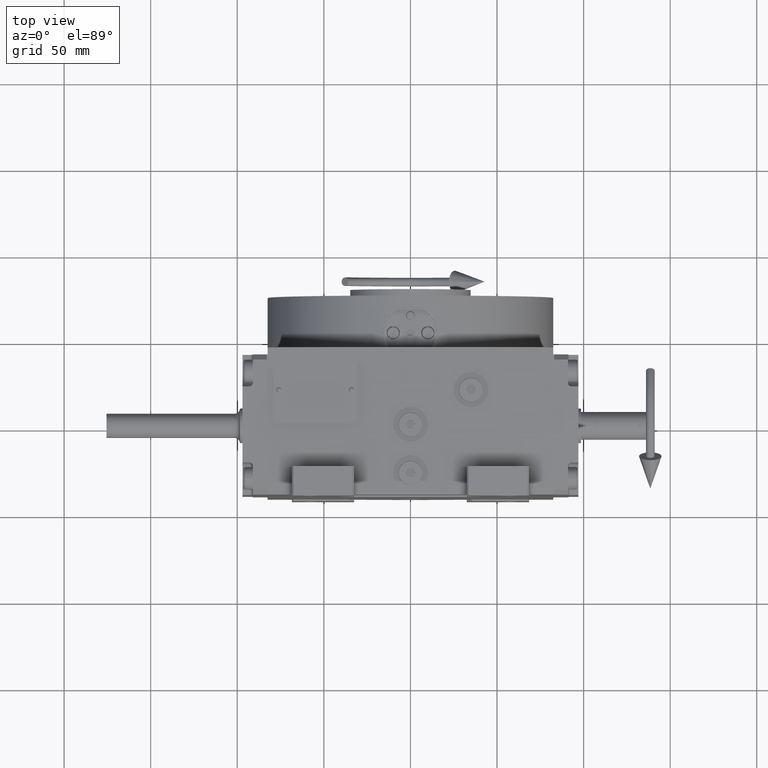
[diagram: clean part render]
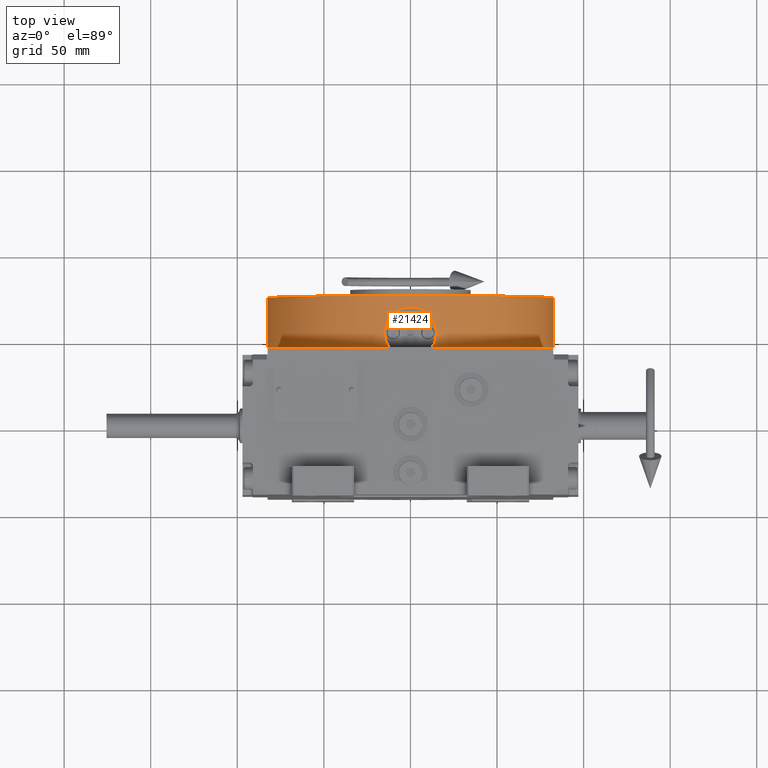
[diagram: same view with one face highlighted and labeled with its STEP entity id]
A machine part, top view. The second image highlights one B-rep face of the part: STEP entity #21424.
In plain terms, the highlighted cylindrical surface (partial cylindrical patch) has radius 82.5 mm, axis along (0, 1, 0).
Its self-contained STEP definition (entity closure, byte-faithful):
#391 = CIRCLE ( 'NONE', #24077, 82.50000000000001421 ) ;
#1786 = CARTESIAN_POINT ( 'NONE',  ( -3.867827837291152537, -82.41486004604385585, 23.52566220404655439 ) ) ;
#2101 = ORIENTED_EDGE ( 'NONE', *, *, #9832, .T. ) ;
#2421 = CARTESIAN_POINT ( 'NONE',  ( 14.05486030038500900, -81.29419948058227874, 14.26331805387535923 ) ) ;
#2730 = CARTESIAN_POINT ( 'NONE',  ( 1.946678680942775408, -82.47845885749219974, 23.88111003742973182 ) ) ;
#3046 = CARTESIAN_POINT ( 'NONE',  ( -14.97611104150528405, -81.12933149880575456, 9.976411005623861072 ) ) ;
#3485 = ORIENTED_EDGE ( 'NONE', *, *, #60512, .T. ) ;
#4010 = CARTESIAN_POINT ( 'NONE',  ( 14.99998170468830949, -81.12496520513606413, 8.999999993001440046 ) ) ;
#4275 = EDGE_LOOP ( 'NONE', ( #47640, #2101, #34885, #60422, #3485, #4700, #13026, #35563 ) ) ;
#4310 = CARTESIAN_POINT ( 'NONE',  ( 82.49999999999998579, -1.010300241903009221E-14, 30.49999999999999289 ) ) ;
#4700 = ORIENTED_EDGE ( 'NONE', *, *, #54104, .T. ) ;
#6916 = CARTESIAN_POINT ( 'NONE',  ( -15.00000155215765929, -81.12491227879678490, 8.999999541712211837 ) ) ;
#7053 = VERTEX_POINT ( 'NONE', #59082 ) ;
#7183 = CARTESIAN_POINT ( 'NONE',  ( -14.74242422404743813, -81.17373584456728963, 5.798881419567308626 ) ) ;
#7220 = CARTESIAN_POINT ( 'NONE',  ( 4.812155808953960445, -82.36454601314801494, 23.24101326873693196 ) ) ;
#7861 = CARTESIAN_POINT ( 'NONE',  ( -14.99996597817484556, -81.12490998857889224, 9.487419267298863090 ) ) ;
#8490 = CARTESIAN_POINT ( 'NONE',  ( 14.97604040435058970, -81.12934452212022052, 9.976003562772230993 ) ) ;
#9832 = EDGE_CURVE ( 'NONE', #48890, #46167, #23607, .T. ) ;
#10895 = CARTESIAN_POINT ( 'NONE',  ( 0.000000000000000000, 0.000000000000000000, 0.000000000000000000 ) ) ;
#11416 = CARTESIAN_POINT ( 'NONE',  ( -0.4879484670812267999, -82.50000264633506220, 24.00001391814626928 ) ) ;
#11756 = CARTESIAN_POINT ( 'NONE',  ( 11.93547449364186264, -81.63394118524294640, 18.13850242473971264 ) ) ;
#11829 = VECTOR ( 'NONE', #43284, 1000.000000000000000 ) ;
#12338 = DIRECTION ( 'NONE',  ( 1.000000000000000000, 0.000000000000000000, 0.000000000000000000 ) ) ;
#12703 = CARTESIAN_POINT ( 'NONE',  ( -14.05465484448405888, -81.29423505555718066, 14.26388389374271348 ) ) ;
#12808 = CARTESIAN_POINT ( 'NONE',  ( 12.24331260194398219, -81.58683580788726886, 0.3244168025936693400 ) ) ;
#13026 = ORIENTED_EDGE ( 'NONE', *, *, #61955, .T. ) ;
#13196 = EDGE_CURVE ( 'NONE', #20251, #62593, #58999, .T. ) ;
#14439 = CARTESIAN_POINT ( 'NONE',  ( -82.50000000000001421, 2.020633851199993078E-14, 30.49999999999999289 ) ) ;
#14802 = AXIS2_PLACEMENT_3D ( 'NONE', #30042, #44564, #29722 ) ;
#15142 = CARTESIAN_POINT ( 'NONE',  ( -82.50000000000001421, 1.010322486831990379E-14, 0.000000000000000000 ) ) ;
#15624 = AXIS2_PLACEMENT_3D ( 'NONE', #35550, #40724, #60340 ) ;
#15726 = CARTESIAN_POINT ( 'NONE',  ( -15.00012495507364818, -81.12488059373359306, 7.400251699618396017 ) ) ;
#16576 = CARTESIAN_POINT ( 'NONE',  ( -10.25790594505797237, -81.86054721232861198, 19.95533894909772954 ) ) ;
#16740 = AXIS2_PLACEMENT_3D ( 'NONE', #10895, #29325, #12338 ) ;
#17211 = CARTESIAN_POINT ( 'NONE',  ( 6.624688226116246526, -82.23860887313442447, 22.49344792348201594 ) ) ;
#19374 = CARTESIAN_POINT ( 'NONE',  ( 14.99989816169959411, -81.12492252780923252, 9.486904479132544310 ) ) ;
#20023 = DIRECTION ( 'NONE',  ( 0.000000000000000000, 0.000000000000000000, 1.000000000000000000 ) ) ;
#20050 = CARTESIAN_POINT ( 'NONE',  ( 14.88111878486925832, -81.14680913315217481, 10.94694900896201339 ) ) ;
#20251 = VERTEX_POINT ( 'NONE', #37841 ) ;
#21424 = ADVANCED_FACE ( 'NONE', ( #59276 ), #24473, .T. ) ;
#21442 = CARTESIAN_POINT ( 'NONE',  ( 3.868685143425967254, -82.41481977167674700, 23.52543458421588696 ) ) ;
#22090 = CARTESIAN_POINT ( 'NONE',  ( 14.21962999529760197, -81.26544602374748649, 13.80011905861209520 ) ) ;
#22397 = CARTESIAN_POINT ( 'NONE',  ( -0.9749065849585353272, -82.49566829684266622, 23.97626193698611630 ) ) ;
#22721 = CARTESIAN_POINT ( 'NONE',  ( -7.908806210085963073, -82.12107474416406205, 21.75512952174813819 ) ) ;
#23290 = VERTEX_POINT ( 'NONE', #38968 ) ;
#23590 = VERTEX_POINT ( 'NONE', #56176 ) ;
#23607 = LINE ( 'NONE', #42661, #11829 ) ;
#23691 = CARTESIAN_POINT ( 'NONE',  ( 12.00000000000000000, -81.62260716247999426, 0.000000000000000000 ) ) ;
#24077 = AXIS2_PLACEMENT_3D ( 'NONE', #53637, #53025, #28217 ) ;
#24473 = CYLINDRICAL_SURFACE ( 'NONE', #16740, 82.50000000000000000 ) ;
#26309 = CARTESIAN_POINT ( 'NONE',  ( -14.88113668230524134, -81.14680586697889453, 10.94705578319436157 ) ) ;
#26606 = CARTESIAN_POINT ( 'NONE',  ( -14.50208352788519228, -81.21551683938376698, 12.86383315645771575 ) ) ;
#26779 = EDGE_CURVE ( 'NONE', #23290, #48890, #391, .T. ) ;
#26917 = CARTESIAN_POINT ( 'NONE',  ( -13.49373063831430919, -81.38988350970689112, 15.62419185199609650 ) ) ;
#27089 = VECTOR ( 'NONE', #20023, 1000.000000000000000 ) ;
#27255 = CARTESIAN_POINT ( 'NONE',  ( -1.945796341396865525, -82.47847966099942596, 23.88122612831212166 ) ) ;
#27323 = EDGE_CURVE ( 'NONE', #62593, #46167, #35439, .T. ) ;
#27556 = CARTESIAN_POINT ( 'NONE',  ( -11.30480490646017699, -81.72482293125531783, 18.90840080558208314 ) ) ;
#28217 = DIRECTION ( 'NONE',  ( 0.1454545454545079775, -0.9893649353027538229, 0.000000000000000000 ) ) ;
#29325 = DIRECTION ( 'NONE',  ( 0.000000000000000000, 0.000000000000000000, 1.000000000000000000 ) ) ;
#29722 = DIRECTION ( 'NONE',  ( -1.000000000000000000, 0.000000000000000000, 0.000000000000000000 ) ) ;
#30042 = CARTESIAN_POINT ( 'NONE',  ( 0.000000000000000000, 0.000000000000000000, 30.49999999999999289 ) ) ;
#31108 = CARTESIAN_POINT ( 'NONE',  ( 9.891167989166826047, -81.90581744979145640, 20.28740639923825739 ) ) ;
#31450 = CARTESIAN_POINT ( 'NONE',  ( 13.02891348785843917, -81.46657792094852368, 16.49810643378964770 ) ) ;
#31677 = CARTESIAN_POINT ( 'NONE',  ( 14.99998170468830949, -81.12496520513606413, 8.999999993001440046 ) ) ;
#32295 = VERTEX_POINT ( 'NONE', #31677 ) ;
#32397 = CARTESIAN_POINT ( 'NONE',  ( -11.93490206567074807, -81.63402577779145020, 18.13927526272372148 ) ) ;
#34001 = CARTESIAN_POINT ( 'NONE',  ( 14.74248490922440880, -81.17372402366743245, 5.799389260054983453 ) ) ;
#34480 = CARTESIAN_POINT ( 'NONE',  ( -15.00000155215765929, -81.12491227879678490, 8.999999541712211837 ) ) ;
#34885 = ORIENTED_EDGE ( 'NONE', *, *, #27323, .F. ) ;
#35426 = CARTESIAN_POINT ( 'NONE',  ( -12.90388583830122649, -81.48489037961125803, 1.341496897383961162 ) ) ;
#35439 = CIRCLE ( 'NONE', #14802, 82.50000000000000000 ) ;
#35550 = CARTESIAN_POINT ( 'NONE',  ( 0.000000000000000000, 0.000000000000000000, 0.000000000000000000 ) ) ;
#35563 = ORIENTED_EDGE ( 'NONE', *, *, #40639, .T. ) ;
#36251 = CARTESIAN_POINT ( 'NONE',  ( 8.730210659104772120, -82.03781768206627589, 21.20768323055676063 ) ) ;
#36265 = CARTESIAN_POINT ( 'NONE',  ( 82.49999999999998579, -1.010300241903009221E-14, 0.000000000000000000 ) ) ;
#36583 = CARTESIAN_POINT ( 'NONE',  ( -14.21939720915072236, -81.26548680187907792, 13.80076203430779636 ) ) ;
#36889 = CARTESIAN_POINT ( 'NONE',  ( 14.62034687227734686, -81.19424092436567264, 12.38900085948214169 ) ) ;
#37203 = CARTESIAN_POINT ( 'NONE',  ( -14.62018483521941903, -81.19427011681041506, 12.38958309517191125 ) ) ;
#37306 = CARTESIAN_POINT ( 'NONE',  ( 13.98285332921872559, -81.30680104435214162, 3.511842341530857947 ) ) ;
#37540 = CARTESIAN_POINT ( 'NONE',  ( 7.499193382787055384, -82.16259812932356965, 22.02817527205979431 ) ) ;
#37841 = CARTESIAN_POINT ( 'NONE',  ( -82.50000000000001421, 2.020633851199993078E-14, 0.000000000000000000 ) ) ;
#38966 = CARTESIAN_POINT ( 'NONE',  ( -13.10624451707161064, -81.45251509904302623, 1.693301029072924457 ) ) ;
#38968 = CARTESIAN_POINT ( 'NONE',  ( 12.00000000000000000, -81.62260716247999426, 0.000000000000000000 ) ) ;
#39639 = CARTESIAN_POINT ( 'NONE',  ( -12.24319486889437414, -81.58685311677562879, 0.3242598251943211718 ) ) ;
#40639 = EDGE_CURVE ( 'NONE', #32295, #23290, #56446, .T. ) ;
#40724 = DIRECTION ( 'NONE',  ( 0.000000000000000000, 0.000000000000000000, 1.000000000000000000 ) ) ;
#41121 = CARTESIAN_POINT ( 'NONE',  ( 10.25845936648661372, -81.86047786769078982, 19.95481955293025678 ) ) ;
#41435 = CARTESIAN_POINT ( 'NONE',  ( -8.729544479475640273, -82.03788872213942795, 21.20816065199864298 ) ) ;
#41758 = CARTESIAN_POINT ( 'NONE',  ( 14.50226475351318811, -81.21548443283947449, 12.86326937730964204 ) ) ;
#42065 = CARTESIAN_POINT ( 'NONE',  ( 2.431423179542332669, -82.46555639784538982, 23.80969995749037338 ) ) ;
#42385 = CARTESIAN_POINT ( 'NONE',  ( -6.617142359139878138, -82.23535187233964905, 22.47052742801817615 ) ) ;
#42661 = CARTESIAN_POINT ( 'NONE',  ( 82.49999999999998579, -1.010322486831990379E-14, 0.000000000000000000 ) ) ;
#42712 = CARTESIAN_POINT ( 'NONE',  ( 14.81014688631922027, -81.15983520902004500, 11.42877646947460057 ) ) ;
#43284 = DIRECTION ( 'NONE',  ( 0.000000000000000000, 0.000000000000000000, 1.000000000000000000 ) ) ;
#43362 = CARTESIAN_POINT ( 'NONE',  ( 15.00017790217110836, -81.12487080390822314, 7.399368257337098242 ) ) ;
#43710 = CARTESIAN_POINT ( 'NONE',  ( 12.90417259304091502, -81.48484508862800624, 1.341936808822923100 ) ) ;
#43984 = B_SPLINE_CURVE_WITH_KNOTS ( 'NONE', 3,
 ( #6916, #7861, #3046, #26309, #60746, #37203, #26606, #36583, #12703, #26917, #61387, #32397, #27556, #16576, #46271, #51720, #41435, #22721, #45963, #42385, #61074, #56240, #1786, #62022, #27255, #22397, #11416, #46905, #51406, #2730, #42065, #21442, #7220, #17211, #37540, #36251, #46576, #31108, #41121, #55927, #11756, #31450, #51092, #2421, #22090, #41758, #36889, #42712, #20050, #8490, #19374, #59349 ),
 .UNSPECIFIED., .F., .F.,
 ( 4, 2, 2, 2, 2, 2, 2, 2, 2, 2, 2, 2, 2, 2, 2, 2, 2, 2, 2, 2, 2, 2, 2, 2, 2, 4 ),
 ( 0.1454211916502409219, 0.1675750447099730867, 0.1897288977697052237, 0.2118827508294373885, 0.2340366038891695255, 0.2783443100086339106, 0.3226520161280983512, 0.3448058691878305160, 0.3669597222475627918, 0.3891135753072950121, 0.4112674283670272324, 0.4555751344864917840, 0.4777289875462240598, 0.4998828406059562801, 0.5220366936656886114, 0.5441905467254208872, 0.5884982528448854389, 0.6328059589643499905, 0.6549598120240823773, 0.6771136650838146531, 0.7214213712032793158, 0.7657290773227439784, 0.7878829303824763652, 0.8100367834422087521, 0.8321906365019411389, 0.8543444895616735257 ),
 .UNSPECIFIED. ) ;
#44564 = DIRECTION ( 'NONE',  ( 0.000000000000000000, 0.000000000000000000, 1.000000000000000000 ) ) ;
#45963 = CARTESIAN_POINT ( 'NONE',  ( -7.484978948461018078, -82.16090774029784427, 22.00829641613369247 ) ) ;
#46167 = VERTEX_POINT ( 'NONE', #4310 ) ;
#46271 = CARTESIAN_POINT ( 'NONE',  ( -9.890504462964388566, -81.90589755126528360, 20.28798289320899073 ) ) ;
#46576 = CARTESIAN_POINT ( 'NONE',  ( 9.126528520268772482, -81.99454014431202609, 20.91422892542598788 ) ) ;
#46905 = CARTESIAN_POINT ( 'NONE',  ( 0.4888429166140731419, -82.49999735124053757, 23.99998603411285103 ) ) ;
#47640 = ORIENTED_EDGE ( 'NONE', *, *, #26779, .T. ) ;
#48188 = CARTESIAN_POINT ( 'NONE',  ( 13.66723119669916819, -81.36092580131199270, 2.766280334785800044 ) ) ;
#48890 = VERTEX_POINT ( 'NONE', #36265 ) ;
#48986 = CARTESIAN_POINT ( 'NONE',  ( -13.66693360478552854, -81.36097572575444303, 2.765632748514421202 ) ) ;
#50237 = CARTESIAN_POINT ( 'NONE',  ( -12.47259339607201056, -81.55202047700251455, 0.6574111697099772611 ) ) ;
#51092 = CARTESIAN_POINT ( 'NONE',  ( 13.49400507702379315, -81.38983779311415390, 15.62360459987141326 ) ) ;
#51406 = CARTESIAN_POINT ( 'NONE',  ( 0.9757833380981876248, -82.49565794798510865, 23.97620529776547116 ) ) ;
#51720 = CARTESIAN_POINT ( 'NONE',  ( -9.125874858034199733, -81.99461287356496086, 20.91473132629081633 ) ) ;
#53025 = DIRECTION ( 'NONE',  ( 0.000000000000000000, 0.000000000000000000, 1.000000000000000000 ) ) ;
#53637 = CARTESIAN_POINT ( 'NONE',  ( 0.000000000000000000, 0.000000000000000000, 0.000000000000000000 ) ) ;
#53793 = CARTESIAN_POINT ( 'NONE',  ( -13.98260586172614417, -81.30684380208695927, 3.511029366357954373 ) ) ;
#53990 = CARTESIAN_POINT ( 'NONE',  ( 13.10652166113867167, -81.45247052056652137, 1.693759511858070832 ) ) ;
#54104 = EDGE_CURVE ( 'NONE', #7053, #23590, #60007, .T. ) ;
#54753 = CIRCLE ( 'NONE', #15624, 82.50000000000000000 ) ;
#55927 = CARTESIAN_POINT ( 'NONE',  ( 11.30536172407987650, -81.72474593102090523, 18.90776664378990901 ) ) ;
#56176 = CARTESIAN_POINT ( 'NONE',  ( -15.00000155215765929, -81.12491227879678490, 8.999999541712211837 ) ) ;
#56240 = CARTESIAN_POINT ( 'NONE',  ( -4.811342207377684588, -82.36459328412949787, 23.24128728243599440 ) ) ;
#56446 = B_SPLINE_CURVE_WITH_KNOTS ( 'NONE', 3,
 ( #4010, #43362, #34001, #37306, #48188, #53990, #43710, #61796, #12808, #23691 ),
 .UNSPECIFIED., .F., .F.,
 ( 4, 2, 2, 2, 4 ),
 ( 0.8543444895616735257, 0.9271722447808367074, 0.9635861223904182982, 0.9817930611952091491, 1.000000000000000000 ),
 .UNSPECIFIED. ) ;
#58955 = CARTESIAN_POINT ( 'NONE',  ( -12.00000000000000000, -81.62260716247999426, 0.000000000000000000 ) ) ;
#58999 = LINE ( 'NONE', #15142, #27089 ) ;
#59082 = CARTESIAN_POINT ( 'NONE',  ( -12.00000000000000000, -81.62260716247999426, 0.000000000000000000 ) ) ;
#59276 = FACE_OUTER_BOUND ( 'NONE', #4275, .T. ) ;
#59349 = CARTESIAN_POINT ( 'NONE',  ( 14.99998170468830949, -81.12496520513606413, 8.999999993001440046 ) ) ;
#60007 = B_SPLINE_CURVE_WITH_KNOTS ( 'NONE', 3,
 ( #58955, #39639, #50237, #35426, #38966, #48986, #53793, #7183, #15726, #34480 ),
 .UNSPECIFIED., .F., .F.,
 ( 4, 2, 2, 2, 4 ),
 ( 0.000000000000000000, 0.01817764895628013258, 0.03635529791256026516, 0.07271059582512048869, 0.1454211916502409219 ),
 .UNSPECIFIED. ) ;
#60340 = DIRECTION ( 'NONE',  ( -1.000000000000000000, 0.000000000000000000, 0.000000000000000000 ) ) ;
#60422 = ORIENTED_EDGE ( 'NONE', *, *, #13196, .F. ) ;
#60512 = EDGE_CURVE ( 'NONE', #20251, #7053, #54753, .T. ) ;
#60746 = CARTESIAN_POINT ( 'NONE',  ( -14.81001008892855353, -81.15986018706161076, 11.42951172787877923 ) ) ;
#61074 = CARTESIAN_POINT ( 'NONE',  ( -6.170707242067203779, -82.27015669309764689, 22.68071997146563135 ) ) ;
#61387 = CARTESIAN_POINT ( 'NONE',  ( -13.02860497951152574, -81.46662816327996381, 16.49865198838897484 ) ) ;
#61796 = CARTESIAN_POINT ( 'NONE',  ( 12.47279196628402254, -81.55199022706000278, 0.6576875248769845639 ) ) ;
#61955 = EDGE_CURVE ( 'NONE', #23590, #32295, #43984, .T. ) ;
#62022 = CARTESIAN_POINT ( 'NONE',  ( -2.430560769728152604, -82.46558182958291638, 23.80984091961616755 ) ) ;
#62593 = VERTEX_POINT ( 'NONE', #14439 ) ;